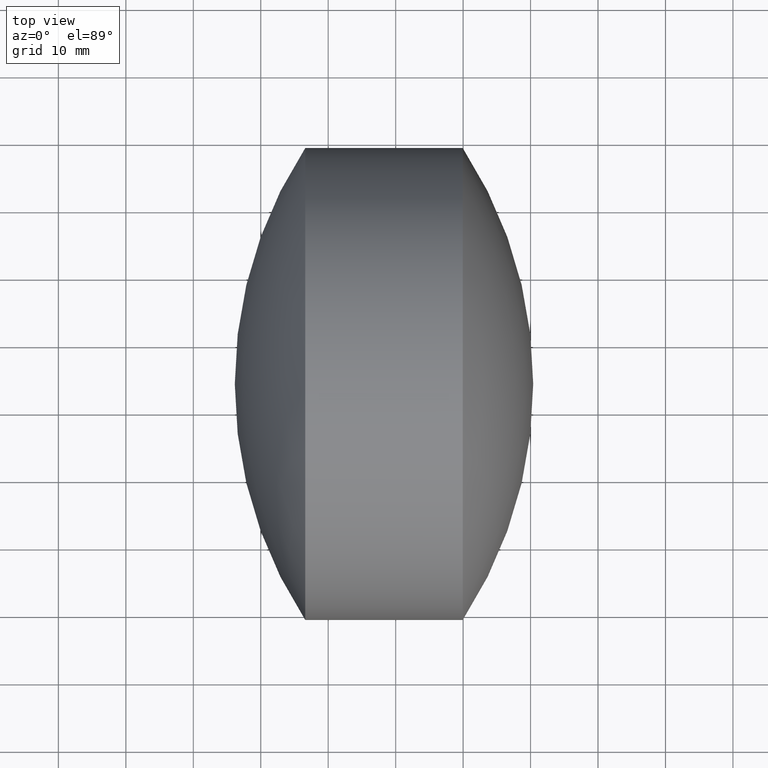
[diagram: clean part render]
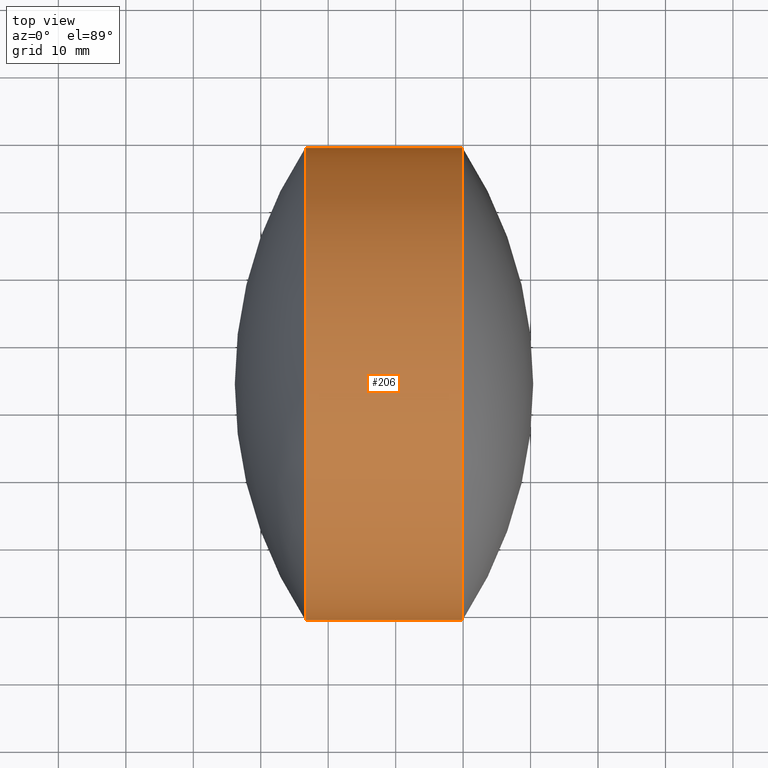
[diagram: same view with one face highlighted and labeled with its STEP entity id]
A machine part, top view. The second image highlights one B-rep face of the part: STEP entity #206.
In plain terms, the highlighted cylindrical surface (partial cylindrical patch) has radius 35 mm, axis along (-1, 0, -0).
Its self-contained STEP definition (entity closure, byte-faithful):
#7 = CARTESIAN_POINT ( 'NONE',  ( 226.6040127648179500, 133.9814138434225900, 0.0000000000000000000 ) ) ;
#21 = VERTEX_POINT ( 'NONE', #152 ) ;
#26 = FACE_OUTER_BOUND ( 'NONE', #228, .T. ) ;
#31 = DIRECTION ( 'NONE',  ( -1.000000000000000000, 1.772925823926328100E-015, -0.0000000000000000000 ) ) ;
#33 = CARTESIAN_POINT ( 'NONE',  ( 198.4294383779661900, 98.98141384342258700, 0.0000000000000000000 ) ) ;
#42 = EDGE_CURVE ( 'NONE', #155, #67, #198, .T. ) ;
#52 = EDGE_CURVE ( 'NONE', #217, #21, #179, .T. ) ;
#60 = AXIS2_PLACEMENT_3D ( 'NONE', #242, #266, #220 ) ;
#63 = VECTOR ( 'NONE', #201, 1000.000000000000000 ) ;
#67 = VERTEX_POINT ( 'NONE', #243 ) ;
#71 = LINE ( 'NONE', #241, #63 ) ;
#99 = DIRECTION ( 'NONE',  ( -1.000000000000000000, 1.772925823926328100E-015, -0.0000000000000000000 ) ) ;
#108 = CARTESIAN_POINT ( 'NONE',  ( 198.4294383779662500, 133.9814138434226400, 0.0000000000000000000 ) ) ;
#132 = ORIENTED_EDGE ( 'NONE', *, *, #164, .T. ) ;
#134 = AXIS2_PLACEMENT_3D ( 'NONE', #108, #31, #299 ) ;
#141 = AXIS2_PLACEMENT_3D ( 'NONE', #7, #99, #194 ) ;
#149 = ORIENTED_EDGE ( 'NONE', *, *, #246, .F. ) ;
#152 = CARTESIAN_POINT ( 'NONE',  ( 226.6040127648180100, 168.9814138434225300, 0.0000000000000000000 ) ) ;
#155 = VERTEX_POINT ( 'NONE', #218 ) ;
#164 = EDGE_CURVE ( 'NONE', #67, #21, #71, .T. ) ;
#168 = LINE ( 'NONE', #33, #209 ) ;
#175 = DIRECTION ( 'NONE',  ( -1.000000000000000000, 1.772925823926328100E-015, -0.0000000000000000000 ) ) ;
#178 = CARTESIAN_POINT ( 'NONE',  ( 226.6040127648179000, 98.98141384342262900, -4.286263797015731000E-015 ) ) ;
#179 = CIRCLE ( 'NONE', #141, 35.00000000000002800 ) ;
#193 = ORIENTED_EDGE ( 'NONE', *, *, #52, .F. ) ;
#194 = DIRECTION ( 'NONE',  ( -1.586032892321650900E-015, -1.000000000000000000, 0.0000000000000000000 ) ) ;
#198 = CIRCLE ( 'NONE', #60, 35.00000000000005700 ) ;
#201 = DIRECTION ( 'NONE',  ( -1.000000000000000000, 1.772925823926328100E-015, -0.0000000000000000000 ) ) ;
#206 = ADVANCED_FACE ( 'NONE', ( #26 ), #283, .T. ) ;
#209 = VECTOR ( 'NONE', #175, 1000.000000000000000 ) ;
#217 = VERTEX_POINT ( 'NONE', #178 ) ;
#218 = CARTESIAN_POINT ( 'NONE',  ( 249.9372127648178700, 98.98141384342245900, -4.286263797015745200E-015 ) ) ;
#220 = DIRECTION ( 'NONE',  ( -1.586032892321649700E-015, -1.000000000000000000, 0.0000000000000000000 ) ) ;
#228 = EDGE_LOOP ( 'NONE', ( #279, #132, #193, #149 ) ) ;
#241 = CARTESIAN_POINT ( 'NONE',  ( 198.4294383779663100, 168.9814138434227000, 4.286263797015741200E-015 ) ) ;
#242 = CARTESIAN_POINT ( 'NONE',  ( 249.9372127648179300, 133.9814138434225600, 0.0000000000000000000 ) ) ;
#243 = CARTESIAN_POINT ( 'NONE',  ( 249.9372127648179900, 168.9814138434226400, 0.0000000000000000000 ) ) ;
#246 = EDGE_CURVE ( 'NONE', #155, #217, #168, .T. ) ;
#266 = DIRECTION ( 'NONE',  ( -1.000000000000000000, 1.772925823926328100E-015, -0.0000000000000000000 ) ) ;
#279 = ORIENTED_EDGE ( 'NONE', *, *, #42, .T. ) ;
#283 = CYLINDRICAL_SURFACE ( 'NONE', #134, 35.00000000000004300 ) ;
#299 = DIRECTION ( 'NONE',  ( -1.586032892321650300E-015, -1.000000000000000000, 0.0000000000000000000 ) ) ;